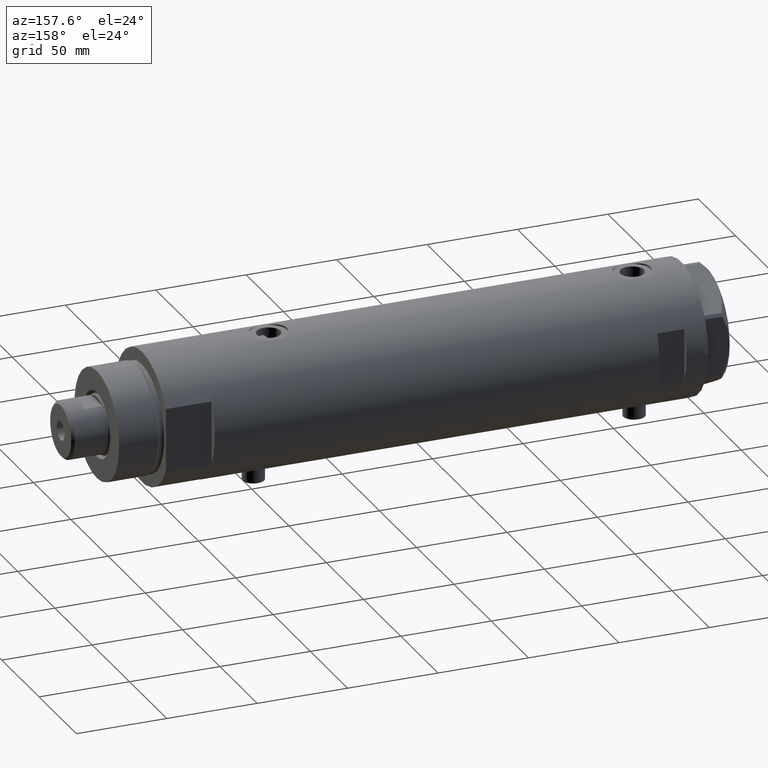
[diagram: clean part render]
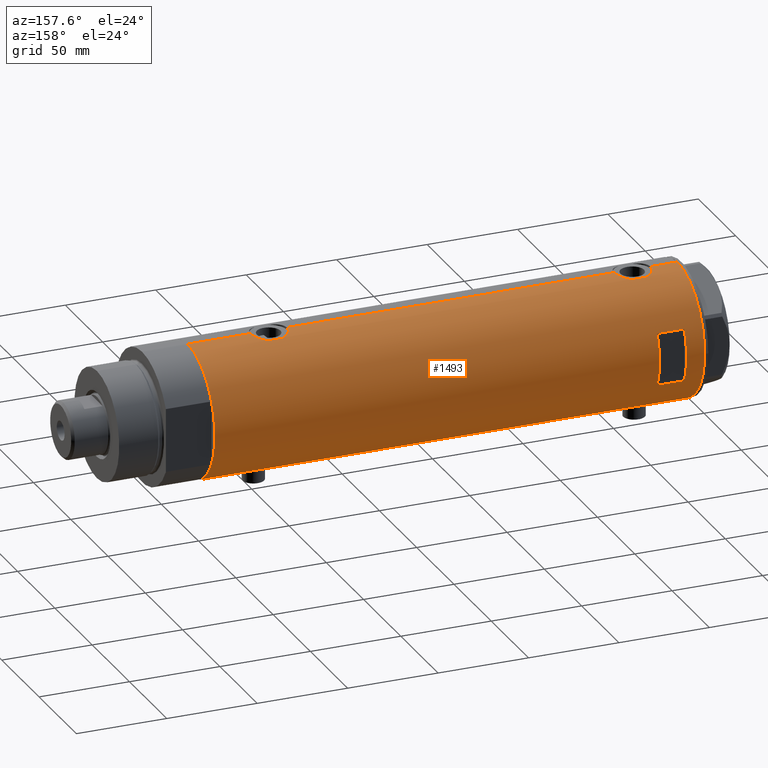
[diagram: same view with one face highlighted and labeled with its STEP entity id]
A machine part, auxiliary view. The second image highlights one B-rep face of the part: STEP entity #1493.
In plain terms, the highlighted cylindrical surface (partial cylindrical patch) has radius 36.5 mm, axis along (-1, -0, 0).
Its self-contained STEP definition (entity closure, byte-faithful):
#10 = CARTESIAN_POINT ( 'NONE',  ( 35.29999999999999716, 9.282241108697837362, 114.1202150475476316 ) ) ;
#15 = EDGE_CURVE ( 'NONE', #39, #277, #1297, .T. ) ;
#28 = VERTEX_POINT ( 'NONE', #2754 ) ;
#39 = VERTEX_POINT ( 'NONE', #970 ) ;
#54 = CARTESIAN_POINT ( 'NONE',  ( 36.29420020483473053, 3.877527130731370342, -99.82098974400290103 ) ) ;
#74 = CARTESIAN_POINT ( 'NONE',  ( -36.16083474549355259, 4.969527450313384165, 107.5879468087725144 ) ) ;
#101 = CARTESIAN_POINT ( 'NONE',  ( -36.50000000000000000, 1.603939656238031057E-15, -92.84999999999999432 ) ) ;
#119 = CARTESIAN_POINT ( 'NONE',  ( 35.52737867031126484, 8.373910777960906771, 104.9113964328293065 ) ) ;
#125 = ORIENTED_EDGE ( 'NONE', *, *, #160, .F. ) ;
#129 = CARTESIAN_POINT ( 'NONE',  ( -36.50000000000000000, 4.469960816887838430E-15, -135.4000000000000057 ) ) ;
#145 = VECTOR ( 'NONE', #1158, 1000.000000000000000 ) ;
#155 = LINE ( 'NONE', #1636, #4261 ) ;
#160 = EDGE_CURVE ( 'NONE', #960, #39, #3896, .T. ) ;
#164 = CARTESIAN_POINT ( 'NONE',  ( 36.45853166336080875, 1.985123042546145022, 100.5483732958226284 ) ) ;
#167 = CARTESIAN_POINT ( 'NONE',  ( 36.50000000000000000, 0.000000000000000000, 100.4000000000000057 ) ) ;
#188 = CARTESIAN_POINT ( 'NONE',  ( 35.69321149401851301, 7.633476302278308978, 116.8646307216643976 ) ) ;
#192 = VERTEX_POINT ( 'NONE', #2430 ) ;
#206 = CARTESIAN_POINT ( 'NONE',  ( 36.29420020483473053, 3.877527130731370342, 101.1790102559971132 ) ) ;
#212 = CARTESIAN_POINT ( 'NONE',  ( 36.48988646280794512, 0.9921857666168139023, -80.63671884865571826 ) ) ;
#234 = VECTOR ( 'NONE', #276, 1000.000000000000000 ) ;
#253 = DIRECTION ( 'NONE',  ( 0.000000000000000000, 0.000000000000000000, 1.000000000000000000 ) ) ;
#276 = DIRECTION ( 'NONE',  ( 0.000000000000000000, 0.000000000000000000, 1.000000000000000000 ) ) ;
#277 = VERTEX_POINT ( 'NONE', #3534 ) ;
#280 = VERTEX_POINT ( 'NONE', #10 ) ;
#286 = CARTESIAN_POINT ( 'NONE',  ( 36.40008489419980720, 2.709263960908029123, -80.97081895403604790 ) ) ;
#290 = EDGE_CURVE ( 'NONE', #3220, #3364, #2494, .T. ) ;
#314 = CARTESIAN_POINT ( 'NONE',  ( -35.96805604460922723, 6.209309709790234777, 110.5788724173182942 ) ) ;
#329 = CARTESIAN_POINT ( 'NONE',  ( -36.19597718496778072, 4.710322426433902976, -103.2285161076201518 ) ) ;
#336 = EDGE_CURVE ( 'NONE', #3364, #3942, #3596, .T. ) ;
#342 = CARTESIAN_POINT ( 'NONE',  ( -36.50000000000000000, 4.469960816887838430E-15, -135.4000000000000057 ) ) ;
#351 = CARTESIAN_POINT ( 'NONE',  ( 36.50000000000000000, 0.000000000000000000, -135.4000000000000057 ) ) ;
#353 = CARTESIAN_POINT ( 'NONE',  ( -36.40902375114221456, 2.582415566883930591, -104.7952169146968515 ) ) ;
#358 = EDGE_CURVE ( 'NONE', #280, #192, #1742, .T. ) ;
#379 = CARTESIAN_POINT ( 'NONE',  ( 35.40502660484481368, 8.876998817796907915, -95.23098724071233789 ) ) ;
#443 = CARTESIAN_POINT ( 'NONE',  ( -36.39522946636253664, 2.769519034821242176, 105.7933607626872288 ) ) ;
#444 = CARTESIAN_POINT ( 'NONE',  ( 35.34894515018992678, 9.096104616284845790, -94.78464083466538170 ) ) ;
#465 = CARTESIAN_POINT ( 'NONE',  ( 36.00287854058830561, 6.017835360302999703, 102.3981188281827457 ) ) ;
#486 = CARTESIAN_POINT ( 'NONE',  ( 36.50000000000000000, 4.344614706140975428E-19, 120.3999999999999915 ) ) ;
#533 = CARTESIAN_POINT ( 'NONE',  ( 36.34070350304396868, 3.414301401755543974, 100.9976378262409327 ) ) ;
#535 = VECTOR ( 'NONE', #2544, 1000.000000000000000 ) ;
#556 = ORIENTED_EDGE ( 'NONE', *, *, #1450, .T. ) ;
#577 = CARTESIAN_POINT ( 'NONE',  ( -36.50000000000000000, 1.603939656238031057E-15, -92.84999999999999432 ) ) ;
#596 = DIRECTION ( 'NONE',  ( 0.000000000000000000, 0.000000000000000000, 1.000000000000000000 ) ) ;
#599 = VECTOR ( 'NONE', #1744, 1000.000000000000000 ) ;
#613 = CARTESIAN_POINT ( 'NONE',  ( 35.52347503888660896, 8.410566959990466884, -85.10046032740658006 ) ) ;
#616 = CARTESIAN_POINT ( 'NONE',  ( -36.16126303108062956, 4.966520032693302333, 115.2164122774528181 ) ) ;
#618 = ORIENTED_EDGE ( 'NONE', *, *, #358, .F. ) ;
#635 = CARTESIAN_POINT ( 'NONE',  ( -36.35033317675380005, 3.306376218664579536, -104.4077071941605084 ) ) ;
#641 = CARTESIAN_POINT ( 'NONE',  ( 36.34264078466112124, 3.418717136061403927, -81.18950965959248833 ) ) ;
#642 = ORIENTED_EDGE ( 'NONE', *, *, #4329, .F. ) ;
#643 = CARTESIAN_POINT ( 'NONE',  ( -36.01679413914729366, 5.919813138266330377, 113.4149969104704070 ) ) ;
#659 = CARTESIAN_POINT ( 'NONE',  ( -35.98846897517730525, 6.089479646546502423, -97.67765108453481560 ) ) ;
#663 = CARTESIAN_POINT ( 'NONE',  ( -35.96793274302675059, 6.210029014836887740, 112.2169423767931846 ) ) ;
#679 = CARTESIAN_POINT ( 'NONE',  ( -35.99530513653993324, 6.049346314076207598, -100.7233258303583483 ) ) ;
#681 = DIRECTION ( 'NONE',  ( -0.000000000000000000, -0.000000000000000000, -1.000000000000000000 ) ) ;
#708 = CARTESIAN_POINT ( 'NONE',  ( -36.05296344941216091, 5.695624845616832133, 108.8184514346324931 ) ) ;
#725 = CARTESIAN_POINT ( 'NONE',  ( -36.01524716445113938, 5.931039972055515364, 109.3866926813534661 ) ) ;
#726 = CARTESIAN_POINT ( 'NONE',  ( 36.18948008481302026, 4.772042575486208804, -99.40177631243155076 ) ) ;
#757 = VERTEX_POINT ( 'NONE', #1603 ) ;
#770 = CARTESIAN_POINT ( 'NONE',  ( 0.000000000000000000, 0.000000000000000000, -135.4000000000000057 ) ) ;
#789 = CARTESIAN_POINT ( 'NONE',  ( 36.36225053217120973, 3.177096004138049601, -100.0851602447597770 ) ) ;
#831 = VERTEX_POINT ( 'NONE', #101 ) ;
#832 = CARTESIAN_POINT ( 'NONE',  ( 36.50000000000000711, 1.005842003469123336, 100.4000000000000199 ) ) ;
#850 = CARTESIAN_POINT ( 'NONE',  ( 36.45954139109321801, 1.735915671103595681, 120.2513678114701321 ) ) ;
#897 = CARTESIAN_POINT ( 'NONE',  ( 35.72794581931695745, 7.469526493268205058, 117.0533979672826490 ) ) ;
#911 = CARTESIAN_POINT ( 'NONE',  ( -36.50000000000000000, 4.469960493350315609E-15, 105.1499999999999915 ) ) ;
#920 = CARTESIAN_POINT ( 'NONE',  ( -36.11199073531170001, 5.309184630646994307, -95.79587159233167881 ) ) ;
#930 = LINE ( 'NONE', #4393, #2471 ) ;
#936 = ORIENTED_EDGE ( 'NONE', *, *, #1924, .F. ) ;
#945 = CARTESIAN_POINT ( 'NONE',  ( -36.09617453667821252, 5.415318599347967776, -95.97293357327089325 ) ) ;
#948 = ORIENTED_EDGE ( 'NONE', *, *, #4346, .T. ) ;
#955 = CARTESIAN_POINT ( 'NONE',  ( -36.49297130294515057, 0.8204796224394291793, 117.6093169221773422 ) ) ;
#957 = ORIENTED_EDGE ( 'NONE', *, *, #1012, .T. ) ;
#960 = VERTEX_POINT ( 'NONE', #2224 ) ;
#970 = CARTESIAN_POINT ( 'NONE',  ( -14.49137674618942917, 33.50000000000000000, 110.3999999999999773 ) ) ;
#986 = CARTESIAN_POINT ( 'NONE',  ( -36.06675137892952421, 5.607935153446978127, 114.1668182600875809 ) ) ;
#1008 = CARTESIAN_POINT ( 'NONE',  ( -36.19624103943463922, 4.708090268046848159, 115.5306122144614136 ) ) ;
#1012 = EDGE_CURVE ( 'NONE', #3322, #2120, #930, .T. ) ;
#1021 = CARTESIAN_POINT ( 'NONE',  ( -36.19624103943463922, 4.708090268046848159, -94.96938778553862903 ) ) ;
#1064 = ORIENTED_EDGE ( 'NONE', *, *, #290, .F. ) ;
#1099 = AXIS2_PLACEMENT_3D ( 'NONE', #770, #3784, #2850 ) ;
#1158 = DIRECTION ( 'NONE',  ( 0.000000000000000000, 0.000000000000000000, 1.000000000000000000 ) ) ;
#1166 = CARTESIAN_POINT ( 'NONE',  ( 14.49137674618942739, 33.50000000000000000, -135.4000000000000057 ) ) ;
#1177 = CARTESIAN_POINT ( 'NONE',  ( 35.79715675463678792, 7.130463293899340194, 117.4155558410599411 ) ) ;
#1207 = VERTEX_POINT ( 'NONE', #3719 ) ;
#1297 = LINE ( 'NONE', #4427, #3472 ) ;
#1301 = CARTESIAN_POINT ( 'NONE',  ( -36.49297130294515057, 0.8204796224394291793, -92.89068307782267198 ) ) ;
#1308 = DIRECTION ( 'NONE',  ( 0.000000000000000000, 0.000000000000000000, 1.000000000000000000 ) ) ;
#1310 = EDGE_CURVE ( 'NONE', #28, #2567, #155, .T. ) ;
#1329 = CARTESIAN_POINT ( 'NONE',  ( 36.12877841835537396, 5.208882251161925936, -82.04946835209707956 ) ) ;
#1363 = DIRECTION ( 'NONE',  ( 0.000000000000000000, 0.000000000000000000, 1.000000000000000000 ) ) ;
#1381 = CARTESIAN_POINT ( 'NONE',  ( 36.45954139109321801, 1.735915671103595681, -80.74863218852991054 ) ) ;
#1425 = CARTESIAN_POINT ( 'NONE',  ( -36.09643313249890184, 5.413601294342275771, 108.2699222660814797 ) ) ;
#1440 = CARTESIAN_POINT ( 'NONE',  ( -36.50000000000000000, 4.469960816887838430E-15, 135.4000000000000057 ) ) ;
#1450 = EDGE_CURVE ( 'NONE', #28, #2998, #2474, .T. ) ;
#1466 = CARTESIAN_POINT ( 'NONE',  ( -36.50000000000000000, 1.603939656238031057E-15, 117.6500000000000057 ) ) ;
#1470 = CARTESIAN_POINT ( 'NONE',  ( -36.39522946636253664, 2.769519034821242176, -104.7066392373127002 ) ) ;
#1493 = ADVANCED_FACE ( 'NONE', ( #2786, #2807 ), #2063, .T. ) ;
#1511 = CARTESIAN_POINT ( 'NONE',  ( -35.99530513653993324, 6.049346314076207598, 109.7766741696416375 ) ) ;
#1529 = CARTESIAN_POINT ( 'NONE',  ( 35.39804469700249001, 8.909380959553011792, 115.0505316448284248 ) ) ;
#1536 = VERTEX_POINT ( 'NONE', #3801 ) ;
#1546 = AXIS2_PLACEMENT_3D ( 'NONE', #3066, #1363, #2392 ) ;
#1549 = CARTESIAN_POINT ( 'NONE',  ( 36.50000000000000000, 0.000000000000000000, 100.4000000000000057 ) ) ;
#1574 = CARTESIAN_POINT ( 'NONE',  ( 36.44688397185920081, 1.983417953489138741, 120.2044995764825472 ) ) ;
#1594 = CARTESIAN_POINT ( 'NONE',  ( 35.83170458557578542, 6.955065627744199119, 117.5894167191246282 ) ) ;
#1603 = CARTESIAN_POINT ( 'NONE',  ( -36.50000000000000000, 4.469960493350315609E-15, -105.3499999999999943 ) ) ;
#1622 = CARTESIAN_POINT ( 'NONE',  ( 36.49999999999999289, 0.4961820988516178477, -80.59999999999998010 ) ) ;
#1636 = CARTESIAN_POINT ( 'NONE',  ( 36.50000000000000000, 0.000000000000000000, -135.4000000000000057 ) ) ;
#1652 = CARTESIAN_POINT ( 'NONE',  ( -36.50000000000000000, 0.4137727629436737664, 117.6500000000000057 ) ) ;
#1669 = CARTESIAN_POINT ( 'NONE',  ( -36.47290054070997201, 1.420408912806973678, -93.01013018339983773 ) ) ;
#1682 = CARTESIAN_POINT ( 'NONE',  ( -36.49999999999999289, 0.4083036190459308212, -105.3499999999999801 ) ) ;
#1696 = CARTESIAN_POINT ( 'NONE',  ( 35.79715675463678792, 7.130463293899340194, -83.58444415894003043 ) ) ;
#1697 = CARTESIAN_POINT ( 'NONE',  ( -35.98846897517730525, 6.089479646546502423, 112.8223489154652128 ) ) ;
#1733 = CARTESIAN_POINT ( 'NONE',  ( -36.26695135241003953, 4.128455078791301247, -103.8103759164473558 ) ) ;
#1742 = B_SPLINE_CURVE_WITH_KNOTS ( 'NONE', 3,
 ( #2257, #1529, #4257, #188, #897, #1177, #1594, #2912, #2283, #2953, #2213, #3642, #3269, #4286, #3576, #1574, #850, #1944, #4240, #486 ),
 .UNSPECIFIED., .F., .F.,
 ( 4, 2, 2, 2, 2, 2, 2, 2, 2, 4 ),
 ( 0.000000000000000000, 0.002977391289382919342, 0.003721739111728640179, 0.004466086934074362316, 0.005954782578765775367, 0.007443478223457188417, 0.008932173868148601467, 0.009676521690494316666, 0.01042086951284003013, 0.01190956515753145012 ),
 .UNSPECIFIED. ) ;
#1744 = DIRECTION ( 'NONE',  ( 0.000000000000000000, 0.000000000000000000, 1.000000000000000000 ) ) ;
#1796 = CARTESIAN_POINT ( 'NONE',  ( -36.50000000000000000, 4.469960493350315609E-15, 105.1499999999999915 ) ) ;
#1806 = EDGE_CURVE ( 'NONE', #831, #4368, #2621, .T. ) ;
#1843 = CARTESIAN_POINT ( 'NONE',  ( 35.29999999999999716, 9.282241108697837362, -94.32021504754762020 ) ) ;
#1847 = ORIENTED_EDGE ( 'NONE', *, *, #2223, .F. ) ;
#1874 = CARTESIAN_POINT ( 'NONE',  ( 35.40502660484481368, 8.876998817796907915, 105.7690127592876621 ) ) ;
#1881 = CARTESIAN_POINT ( 'NONE',  ( -36.36587679577595367, 3.131448301962863834, -104.5128246557361820 ) ) ;
#1893 = CARTESIAN_POINT ( 'NONE',  ( 35.29999999999999716, 9.282241108697837362, 106.6797849524523656 ) ) ;
#1924 = EDGE_CURVE ( 'NONE', #1536, #3220, #3742, .T. ) ;
#1937 = DIRECTION ( 'NONE',  ( -0.000000000000000000, -0.000000000000000000, -1.000000000000000000 ) ) ;
#1944 = CARTESIAN_POINT ( 'NONE',  ( 36.48988646280794512, 0.9921857666168139023, 120.3632811513442249 ) ) ;
#1972 = CARTESIAN_POINT ( 'NONE',  ( 36.41717583764486932, 2.469534783404761402, -80.90651988824329521 ) ) ;
#1974 = CARTESIAN_POINT ( 'NONE',  ( -36.47290054070997201, 1.420408912806973678, 117.4898698166001338 ) ) ;
#1982 = VERTEX_POINT ( 'NONE', #3627 ) ;
#1994 = CARTESIAN_POINT ( 'NONE',  ( -36.39638105034455151, 2.774378062517171006, -93.48456667300897038 ) ) ;
#2019 = CARTESIAN_POINT ( 'NONE',  ( 35.83170458557578542, 6.955065627744199119, -83.41058328087534335 ) ) ;
#2036 = B_SPLINE_CURVE_WITH_KNOTS ( 'NONE', 3,
 ( #577, #4078, #1301, #1669, #4055, #4005, #2382, #1994, #2741, #4100, #2664, #1021, #4027, #920, #945, #2309, #2361, #2401, #3737, #659, #3755, #2332, #3689, #3403, #679, #3362, #2038, #4406, #2059, #3427, #3027, #329, #1733, #3714, #635, #1881, #1470, #353, #2726, #3454, #4020, #1682, #3679 ),
 .UNSPECIFIED., .F., .F.,
 ( 4, 2, 2, 2, 2, 2, 2, 2, 1, 2, 2, 2, 2, 2, 2, 2, 2, 2, 2, 2, 2, 4 ),
 ( 1.558294008431693624E-18, 0.001223527801214140684, 0.001835291701821213954, 0.002447055602428288307, 0.003670583403642434413, 0.004894111204856580084, 0.006117639006070725756, 0.006729402906677815072, 0.007341166807284903520, 0.007952930707891993703, 0.008564694608499082151, 0.009788222409713260783, 0.01101175021092743941, 0.01223527801214161631, 0.01284704191274868568, 0.01345880581335575504, 0.01468233361456989725, 0.01590586141578403945, 0.01651762531639110881, 0.01712938921699818165, 0.01835291701821230650, 0.01957644481942643136 ),
 .UNSPECIFIED. ) ;
#2038 = CARTESIAN_POINT ( 'NONE',  ( -36.05296344941216091, 5.695624845616832133, -101.6815485653675495 ) ) ;
#2040 = EDGE_LOOP ( 'NONE', ( #556, #2584, #1847, #4304, #2429, #957, #3897, #4317, #618, #948, #4036, #1064, #936, #3946, #4454, #3407 ) ) ;
#2041 = CARTESIAN_POINT ( 'NONE',  ( 0.000000000000000000, 0.000000000000000000, 110.3999999999999773 ) ) ;
#2043 = CARTESIAN_POINT ( 'NONE',  ( -35.96094343308265451, 6.249843792257633091, 111.8108711034456917 ) ) ;
#2059 = CARTESIAN_POINT ( 'NONE',  ( -36.09643313249890184, 5.413601294342275771, -102.2300777339185061 ) ) ;
#2063 = CYLINDRICAL_SURFACE ( 'NONE', #1099, 36.50000000000000000 ) ;
#2064 = EDGE_CURVE ( 'NONE', #3322, #4368, #2135, .T. ) ;
#2065 = CARTESIAN_POINT ( 'NONE',  ( -36.50000000000000000, 1.603939656238031057E-15, 117.6500000000000057 ) ) ;
#2099 = CARTESIAN_POINT ( 'NONE',  ( -36.36587679577595367, 3.131448301962863834, 105.9871753442638038 ) ) ;
#2120 = VERTEX_POINT ( 'NONE', #1440 ) ;
#2124 = CARTESIAN_POINT ( 'NONE',  ( -36.49292802938585822, 0.8230716655928924652, 105.1909306124648538 ) ) ;
#2135 = B_SPLINE_CURVE_WITH_KNOTS ( 'NONE', 3,
 ( #2065, #1652, #955, #1974, #4088, #3434, #4391, #3034, #3698, #2699, #3345, #1008, #616, #4063, #3722, #986, #2387, #643, #4480, #1697, #663, #2043, #3412, #314, #1511, #725, #708, #3119, #1425, #4195, #74, #2453, #3802, #2851, #3868, #2099, #443, #4170, #2469, #3821, #2124, #2496, #1796 ),
 .UNSPECIFIED., .F., .F.,
 ( 4, 2, 2, 2, 2, 2, 2, 2, 1, 2, 2, 2, 2, 2, 2, 2, 2, 2, 2, 2, 2, 4 ),
 ( 1.558294008431693624E-18, 0.001223527801214140684, 0.001835291701821213954, 0.002447055602428288307, 0.003670583403642434413, 0.004894111204856580084, 0.006117639006070725756, 0.006729402906677815072, 0.007341166807284903520, 0.007952930707891993703, 0.008564694608499082151, 0.009788222409713260783, 0.01101175021092743941, 0.01223527801214161631, 0.01284704191274868568, 0.01345880581335575504, 0.01468233361456989725, 0.01590586141578403945, 0.01651762531639110881, 0.01712938921699818165, 0.01835291701821230650, 0.01957644481942643136 ),
 .UNSPECIFIED. ) ;
#2172 = CARTESIAN_POINT ( 'NONE',  ( 36.13018480315372472, 5.199168368309159405, -99.15646498208049309 ) ) ;
#2182 = AXIS2_PLACEMENT_3D ( 'NONE', #2041, #2693, #3409 ) ;
#2188 = CARTESIAN_POINT ( 'NONE',  ( 36.50000000000000000, 0.000000000000000000, -100.5999999999999801 ) ) ;
#2213 = CARTESIAN_POINT ( 'NONE',  ( 36.18937351723702278, 4.773052864917646687, 119.2013599311883922 ) ) ;
#2223 = EDGE_CURVE ( 'NONE', #831, #757, #2036, .T. ) ;
#2224 = CARTESIAN_POINT ( 'NONE',  ( 14.49137674618942917, 33.50000000000000000, 110.3999999999999773 ) ) ;
#2254 = ORIENTED_EDGE ( 'NONE', *, *, #3509, .F. ) ;
#2257 = CARTESIAN_POINT ( 'NONE',  ( 35.29999999999999716, 9.282241108697837362, 114.1202150475476316 ) ) ;
#2283 = CARTESIAN_POINT ( 'NONE',  ( 36.00145998247696610, 6.026272765084661032, 118.3955038821238759 ) ) ;
#2309 = CARTESIAN_POINT ( 'NONE',  ( -36.06675137892952421, 5.607935153446978127, -96.33318173991244748 ) ) ;
#2327 = CARTESIAN_POINT ( 'NONE',  ( 36.50000000000000000, 0.000000000000000000, 135.4000000000000057 ) ) ;
#2332 = CARTESIAN_POINT ( 'NONE',  ( -35.96094343308265451, 6.249843792257633091, -98.68912889655430831 ) ) ;
#2361 = CARTESIAN_POINT ( 'NONE',  ( -36.03936508729894683, 5.782103729777505308, -96.70129467396202472 ) ) ;
#2382 = CARTESIAN_POINT ( 'NONE',  ( -36.43371204571226230, 2.206934156026287841, -93.24902718329002482 ) ) ;
#2387 = CARTESIAN_POINT ( 'NONE',  ( -36.03936508729894683, 5.782103729777505308, 113.7987053260379611 ) ) ;
#2392 = DIRECTION ( 'NONE',  ( 1.000000000000000000, 0.000000000000000000, 0.000000000000000000 ) ) ;
#2401 = CARTESIAN_POINT ( 'NONE',  ( -36.01679413914729366, 5.919813138266330377, -97.08500308952963564 ) ) ;
#2429 = ORIENTED_EDGE ( 'NONE', *, *, #2064, .F. ) ;
#2430 = CARTESIAN_POINT ( 'NONE',  ( 36.50000000000000000, 4.344614706140975428E-19, 120.3999999999999915 ) ) ;
#2453 = CARTESIAN_POINT ( 'NONE',  ( -36.19597718496778072, 4.710322426433902976, 107.2714838923798482 ) ) ;
#2454 = CARTESIAN_POINT ( 'NONE',  ( 36.45853166336080875, 1.985123042546145022, -100.4516267041773432 ) ) ;
#2469 = CARTESIAN_POINT ( 'NONE',  ( -36.44628644024909647, 2.015372769639941275, 105.4697187198641615 ) ) ;
#2471 = VECTOR ( 'NONE', #1308, 1000.000000000000000 ) ;
#2474 = CIRCLE ( 'NONE', #1546, 36.50000000000000000 ) ;
#2494 = LINE ( 'NONE', #351, #3824 ) ;
#2496 = CARTESIAN_POINT ( 'NONE',  ( -36.49999999999999289, 0.4083036190459308212, 105.1499999999999773 ) ) ;
#2497 = CARTESIAN_POINT ( 'NONE',  ( 35.93456089024232369, 6.410413305453381838, -98.29085963204141763 ) ) ;
#2516 = CARTESIAN_POINT ( 'NONE',  ( 35.52737867031126484, 8.373910777960906771, -96.08860356717065088 ) ) ;
#2532 = CARTESIAN_POINT ( 'NONE',  ( 36.13018480315372472, 5.199168368309159405, 101.8435350179194643 ) ) ;
#2544 = DIRECTION ( 'NONE',  ( -0.000000000000000000, -0.000000000000000000, -1.000000000000000000 ) ) ;
#2557 = CARTESIAN_POINT ( 'NONE',  ( 36.18948008481302026, 4.772042575486208804, 101.5982236875684208 ) ) ;
#2567 = VERTEX_POINT ( 'NONE', #2188 ) ;
#2584 = ORIENTED_EDGE ( 'NONE', *, *, #2898, .T. ) ;
#2621 = LINE ( 'NONE', #3597, #145 ) ;
#2664 = CARTESIAN_POINT ( 'NONE',  ( -36.26643311080166399, 4.132772529026635944, -94.39380594730116059 ) ) ;
#2677 = LINE ( 'NONE', #4070, #3990 ) ;
#2693 = DIRECTION ( 'NONE',  ( -0.000000000000000000, -0.000000000000000000, 1.000000000000000000 ) ) ;
#2699 = CARTESIAN_POINT ( 'NONE',  ( -36.30200038006936580, 3.811959488093743520, 116.3697210483601054 ) ) ;
#2726 = CARTESIAN_POINT ( 'NONE',  ( -36.44628644024909647, 2.015372769639941275, -105.0302812801358527 ) ) ;
#2741 = CARTESIAN_POINT ( 'NONE',  ( -36.36688032967140316, 3.133094607697482825, -93.67663567362490085 ) ) ;
#2745 = CARTESIAN_POINT ( 'NONE',  ( 35.29999999999999716, 9.282241108697837362, -86.87978495245235422 ) ) ;
#2754 = CARTESIAN_POINT ( 'NONE',  ( 36.50000000000000000, 0.000000000000000000, -135.4000000000000057 ) ) ;
#2786 = FACE_BOUND ( 'NONE', #3194, .T. ) ;
#2788 = CARTESIAN_POINT ( 'NONE',  ( 36.50000000000000711, 1.005842003469123336, -100.5999999999999943 ) ) ;
#2807 = FACE_OUTER_BOUND ( 'NONE', #2040, .T. ) ;
#2827 = CARTESIAN_POINT ( 'NONE',  ( 36.50000000000000000, 0.000000000000000000, -100.5999999999999801 ) ) ;
#2850 = DIRECTION ( 'NONE',  ( 1.000000000000000000, 0.000000000000000000, 0.000000000000000000 ) ) ;
#2851 = CARTESIAN_POINT ( 'NONE',  ( -36.30181775639987052, 3.813582387016785091, 106.4316394242556072 ) ) ;
#2852 = CARTESIAN_POINT ( 'NONE',  ( 35.79766710091575987, 7.135341284989891619, -97.62350520560903533 ) ) ;
#2871 = CARTESIAN_POINT ( 'NONE',  ( 36.00287854058830561, 6.017835360302999703, -98.60188117181722589 ) ) ;
#2889 = CARTESIAN_POINT ( 'NONE',  ( 35.34894515018992678, 9.096104616284845790, 106.2153591653345615 ) ) ;
#2898 = EDGE_CURVE ( 'NONE', #2998, #757, #3444, .T. ) ;
#2912 = CARTESIAN_POINT ( 'NONE',  ( 35.93435287561198521, 6.411571491280768420, 118.0898864492284304 ) ) ;
#2953 = CARTESIAN_POINT ( 'NONE',  ( 36.12877841835537396, 5.208882251161925936, 118.9505316479029062 ) ) ;
#2984 = CARTESIAN_POINT ( 'NONE',  ( 36.50000000000000000, 4.344614706140975428E-19, -80.59999999999999432 ) ) ;
#2998 = VERTEX_POINT ( 'NONE', #129 ) ;
#3001 = CARTESIAN_POINT ( 'NONE',  ( 35.29999999999999716, 9.282241108697837362, -135.4000000000000057 ) ) ;
#3005 = DIRECTION ( 'NONE',  ( 1.000000000000000000, 1.776356839400250465E-15, 0.000000000000000000 ) ) ;
#3010 = CARTESIAN_POINT ( 'NONE',  ( 35.69321149401851301, 7.633476302278308978, -84.13536927833555978 ) ) ;
#3027 = CARTESIAN_POINT ( 'NONE',  ( -36.16083474549355259, 4.969527450313384165, -102.9120531912274998 ) ) ;
#3034 = CARTESIAN_POINT ( 'NONE',  ( -36.39638105034455151, 2.774378062517171006, 117.0154333269910296 ) ) ;
#3064 = CIRCLE ( 'NONE', #3488, 36.50000000000000000 ) ;
#3066 = CARTESIAN_POINT ( 'NONE',  ( 0.000000000000000000, 0.000000000000000000, -135.4000000000000057 ) ) ;
#3082 = CARTESIAN_POINT ( 'NONE',  ( 36.29611582693038940, 3.878758190381173421, -81.36955010900447860 ) ) ;
#3119 = CARTESIAN_POINT ( 'NONE',  ( -36.06690560274405044, 5.606949625760674571, 108.6311407604106876 ) ) ;
#3186 = B_SPLINE_CURVE_WITH_KNOTS ( 'NONE', 3,
 ( #2827, #2788, #2454, #789, #4196, #54, #3803, #726, #2172, #2871, #2497, #2852, #3849, #3475, #2516, #379, #444, #1843 ),
 .UNSPECIFIED., .F., .F.,
 ( 4, 2, 2, 2, 2, 2, 2, 2, 4 ),
 ( 1.734723475976807094E-18, 0.002973648994175672518, 0.003717061242719596394, 0.004460473491263520704, 0.005947297988351386670, 0.007434122485439251769, 0.008920946982527117736, 0.01040777147961498283, 0.01189459597670284793 ),
 .UNSPECIFIED. ) ;
#3194 = EDGE_LOOP ( 'NONE', ( #125, #642, #2254, #3513 ) ) ;
#3220 = VERTEX_POINT ( 'NONE', #3994 ) ;
#3233 = EDGE_CURVE ( 'NONE', #4048, #2120, #3064, .T. ) ;
#3269 = CARTESIAN_POINT ( 'NONE',  ( 36.34264078466112124, 3.418717136061403927, 119.8104903404075401 ) ) ;
#3283 = EDGE_CURVE ( 'NONE', #2567, #1207, #3186, .T. ) ;
#3294 = CARTESIAN_POINT ( 'NONE',  ( 35.29999999999999716, 9.282241108697837362, 106.6797849524523656 ) ) ;
#3313 = CARTESIAN_POINT ( 'NONE',  ( 35.59366931936805400, 8.089554397885871495, 104.5007268091218862 ) ) ;
#3318 = CARTESIAN_POINT ( 'NONE',  ( 35.93435287561198521, 6.411571491280768420, -82.91011355077159806 ) ) ;
#3322 = VERTEX_POINT ( 'NONE', #1466 ) ;
#3330 = LINE ( 'NONE', #3001, #3700 ) ;
#3344 = CIRCLE ( 'NONE', #4440, 36.50000000000000000 ) ;
#3345 = CARTESIAN_POINT ( 'NONE',  ( -36.26643311080166399, 4.132772529026635944, 116.1061940526988252 ) ) ;
#3362 = CARTESIAN_POINT ( 'NONE',  ( -36.01524716445113938, 5.931039972055515364, -101.1133073186465623 ) ) ;
#3364 = VERTEX_POINT ( 'NONE', #167 ) ;
#3403 = CARTESIAN_POINT ( 'NONE',  ( -35.96805604460922723, 6.209309709790234777, -99.92112758268173422 ) ) ;
#3407 = ORIENTED_EDGE ( 'NONE', *, *, #1310, .F. ) ;
#3409 = DIRECTION ( 'NONE',  ( -1.000000000000000000, -1.776356839400250465E-15, 0.000000000000000000 ) ) ;
#3411 = CARTESIAN_POINT ( 'NONE',  ( 35.39804469700249001, 8.909380959553011792, -85.94946835517158945 ) ) ;
#3412 = CARTESIAN_POINT ( 'NONE',  ( -35.96088929326157313, 6.250155299092687855, 110.9938950523675345 ) ) ;
#3427 = CARTESIAN_POINT ( 'NONE',  ( -36.11206433103227198, 5.308658295084048184, -102.4048464804097591 ) ) ;
#3434 = CARTESIAN_POINT ( 'NONE',  ( -36.44504802628534179, 2.011764947064737630, 117.3209364490851669 ) ) ;
#3444 = LINE ( 'NONE', #342, #599 ) ;
#3454 = CARTESIAN_POINT ( 'NONE',  ( -36.46598788992680085, 1.625721481788714895, -105.1487204671383608 ) ) ;
#3472 = VECTOR ( 'NONE', #253, 1000.000000000000000 ) ;
#3475 = CARTESIAN_POINT ( 'NONE',  ( 35.59366931936805400, 8.089554397885871495, -96.49927319087814226 ) ) ;
#3488 = AXIS2_PLACEMENT_3D ( 'NONE', #3889, #3869, #3536 ) ;
#3509 = EDGE_CURVE ( 'NONE', #277, #1982, #3344, .T. ) ;
#3513 = ORIENTED_EDGE ( 'NONE', *, *, #15, .F. ) ;
#3534 = CARTESIAN_POINT ( 'NONE',  ( -14.49137674618942739, 33.50000000000000000, 125.3999999999999773 ) ) ;
#3536 = DIRECTION ( 'NONE',  ( 1.000000000000000000, 0.000000000000000000, 0.000000000000000000 ) ) ;
#3576 = CARTESIAN_POINT ( 'NONE',  ( 36.41717583764486932, 2.469534783404761402, 120.0934801117567048 ) ) ;
#3596 = B_SPLINE_CURVE_WITH_KNOTS ( 'NONE', 3,
 ( #1549, #832, #164, #3934, #533, #206, #4332, #2557, #2532, #465, #3954, #3885, #4305, #3313, #119, #1874, #2889, #3294 ),
 .UNSPECIFIED., .F., .F.,
 ( 4, 2, 2, 2, 2, 2, 2, 2, 4 ),
 ( 1.734723475976807094E-18, 0.002973648994175672518, 0.003717061242719596394, 0.004460473491263520704, 0.005947297988351386670, 0.007434122485439251769, 0.008920946982527117736, 0.01040777147961498283, 0.01189459597670284793 ),
 .UNSPECIFIED. ) ;
#3597 = CARTESIAN_POINT ( 'NONE',  ( -36.50000000000000000, 4.469960816887838430E-15, -135.4000000000000057 ) ) ;
#3627 = CARTESIAN_POINT ( 'NONE',  ( 14.49137674618942739, 33.50000000000000000, 125.3999999999999773 ) ) ;
#3642 = CARTESIAN_POINT ( 'NONE',  ( 36.29611582693038940, 3.878758190381173421, 119.6304498909954930 ) ) ;
#3679 = CARTESIAN_POINT ( 'NONE',  ( -36.50000000000000000, 4.469960493350315609E-15, -105.3499999999999943 ) ) ;
#3689 = CARTESIAN_POINT ( 'NONE',  ( -35.96088929326157313, 6.250155299092687855, -99.50610494763242286 ) ) ;
#3698 = CARTESIAN_POINT ( 'NONE',  ( -36.36688032967140316, 3.133094607697482825, 116.8233643263751134 ) ) ;
#3700 = VECTOR ( 'NONE', #4021, 1000.000000000000000 ) ;
#3714 = CARTESIAN_POINT ( 'NONE',  ( -36.30181775639987052, 3.813582387016785091, -104.0683605757443360 ) ) ;
#3719 = CARTESIAN_POINT ( 'NONE',  ( 35.29999999999999716, 9.282241108697837362, -94.32021504754762020 ) ) ;
#3722 = CARTESIAN_POINT ( 'NONE',  ( -36.09617453667821252, 5.415318599347967776, 114.5270664267291068 ) ) ;
#3731 = CARTESIAN_POINT ( 'NONE',  ( 36.50000000000000000, 0.000000000000000000, -135.4000000000000057 ) ) ;
#3737 = CARTESIAN_POINT ( 'NONE',  ( -35.99700617875953412, 6.038972911021586398, -97.47666814201680552 ) ) ;
#3741 = CARTESIAN_POINT ( 'NONE',  ( 36.18937351723702278, 4.773052864917646687, -81.79864006881155092 ) ) ;
#3742 = B_SPLINE_CURVE_WITH_KNOTS ( 'NONE', 3,
 ( #2745, #3411, #613, #3010, #4105, #1696, #2019, #3318, #4008, #1329, #3741, #3082, #641, #286, #1972, #4087, #1381, #212, #1622, #2984 ),
 .UNSPECIFIED., .F., .F.,
 ( 4, 2, 2, 2, 2, 2, 2, 2, 2, 4 ),
 ( 0.000000000000000000, 0.002977391289382919342, 0.003721739111728640179, 0.004466086934074362316, 0.005954782578765775367, 0.007443478223457188417, 0.008932173868148601467, 0.009676521690494316666, 0.01042086951284003013, 0.01190956515753145012 ),
 .UNSPECIFIED. ) ;
#3755 = CARTESIAN_POINT ( 'NONE',  ( -35.96793274302675059, 6.210029014836887740, -98.28305762320681538 ) ) ;
#3784 = DIRECTION ( 'NONE',  ( 0.000000000000000000, 0.000000000000000000, 1.000000000000000000 ) ) ;
#3801 = CARTESIAN_POINT ( 'NONE',  ( 35.29999999999999716, 9.282241108697837362, -86.87978495245235422 ) ) ;
#3802 = CARTESIAN_POINT ( 'NONE',  ( -36.26695135241003953, 4.128455078791301247, 106.6896240835525163 ) ) ;
#3803 = CARTESIAN_POINT ( 'NONE',  ( 36.26917563968160607, 4.104523505324181087, -99.72215988367473471 ) ) ;
#3821 = CARTESIAN_POINT ( 'NONE',  ( -36.46598788992680085, 1.625721481788714895, 105.3512795328616249 ) ) ;
#3824 = VECTOR ( 'NONE', #3847, 1000.000000000000000 ) ;
#3847 = DIRECTION ( 'NONE',  ( 0.000000000000000000, 0.000000000000000000, 1.000000000000000000 ) ) ;
#3849 = CARTESIAN_POINT ( 'NONE',  ( 35.72860827204725354, 7.471059959301281417, -97.26525150474412840 ) ) ;
#3868 = CARTESIAN_POINT ( 'NONE',  ( -36.35033317675380005, 3.306376218664579536, 106.0922928058394632 ) ) ;
#3869 = DIRECTION ( 'NONE',  ( 0.000000000000000000, 0.000000000000000000, 1.000000000000000000 ) ) ;
#3885 = CARTESIAN_POINT ( 'NONE',  ( 35.79766710091575987, 7.135341284989891619, 103.3764947943909647 ) ) ;
#3889 = CARTESIAN_POINT ( 'NONE',  ( 0.000000000000000000, 0.000000000000000000, 135.4000000000000057 ) ) ;
#3896 = CIRCLE ( 'NONE', #2182, 36.50000000000000000 ) ;
#3897 = ORIENTED_EDGE ( 'NONE', *, *, #3233, .F. ) ;
#3934 = CARTESIAN_POINT ( 'NONE',  ( 36.36225053217120973, 3.177096004138049601, 100.9148397552402088 ) ) ;
#3942 = VERTEX_POINT ( 'NONE', #1893 ) ;
#3946 = ORIENTED_EDGE ( 'NONE', *, *, #4040, .T. ) ;
#3954 = CARTESIAN_POINT ( 'NONE',  ( 35.93456089024232369, 6.410413305453381838, 102.7091403679585397 ) ) ;
#3990 = VECTOR ( 'NONE', #1937, 1000.000000000000000 ) ;
#3994 = CARTESIAN_POINT ( 'NONE',  ( 36.50000000000000000, 4.344614706140975428E-19, -80.59999999999999432 ) ) ;
#4001 = EDGE_CURVE ( 'NONE', #192, #4048, #4449, .T. ) ;
#4005 = CARTESIAN_POINT ( 'NONE',  ( -36.44504802628534179, 2.011764947064737630, -93.17906355091479043 ) ) ;
#4008 = CARTESIAN_POINT ( 'NONE',  ( 36.00145998247696610, 6.026272765084661032, -82.60449611787612412 ) ) ;
#4020 = CARTESIAN_POINT ( 'NONE',  ( -36.49292802938585822, 0.8230716655928924652, -105.3090693875351178 ) ) ;
#4021 = DIRECTION ( 'NONE',  ( -0.000000000000000000, -0.000000000000000000, -1.000000000000000000 ) ) ;
#4027 = CARTESIAN_POINT ( 'NONE',  ( -36.16126303108062956, 4.966520032693302333, -95.28358772254715348 ) ) ;
#4036 = ORIENTED_EDGE ( 'NONE', *, *, #336, .F. ) ;
#4040 = EDGE_CURVE ( 'NONE', #1536, #1207, #3330, .T. ) ;
#4048 = VERTEX_POINT ( 'NONE', #2327 ) ;
#4055 = CARTESIAN_POINT ( 'NONE',  ( -36.46462099658055678, 1.618684470865507041, -93.05975602975154004 ) ) ;
#4063 = CARTESIAN_POINT ( 'NONE',  ( -36.11199073531170001, 5.309184630646994307, 114.7041284076683496 ) ) ;
#4070 = CARTESIAN_POINT ( 'NONE',  ( 35.29999999999999716, 9.282241108697837362, -135.4000000000000057 ) ) ;
#4078 = CARTESIAN_POINT ( 'NONE',  ( -36.50000000000000000, 0.4137727629436737664, -92.85000000000000853 ) ) ;
#4087 = CARTESIAN_POINT ( 'NONE',  ( 36.44688397185920081, 1.983417953489138741, -80.79550042351748118 ) ) ;
#4088 = CARTESIAN_POINT ( 'NONE',  ( -36.46462099658055678, 1.618684470865507041, 117.4402439702484742 ) ) ;
#4100 = CARTESIAN_POINT ( 'NONE',  ( -36.30200038006936580, 3.811959488093743520, -94.13027895163997982 ) ) ;
#4105 = CARTESIAN_POINT ( 'NONE',  ( 35.72794581931695745, 7.469526493268205058, -83.94660203271737942 ) ) ;
#4170 = CARTESIAN_POINT ( 'NONE',  ( -36.40902375114221456, 2.582415566883930591, 105.7047830853031058 ) ) ;
#4195 = CARTESIAN_POINT ( 'NONE',  ( -36.11206433103227198, 5.308658295084048184, 108.0951535195902409 ) ) ;
#4196 = CARTESIAN_POINT ( 'NONE',  ( 36.34070350304396868, 3.414301401755543974, -100.0023621737590531 ) ) ;
#4240 = CARTESIAN_POINT ( 'NONE',  ( 36.49999999999999289, 0.4961820988516178477, 120.3999999999999631 ) ) ;
#4250 = LINE ( 'NONE', #1166, #535 ) ;
#4257 = CARTESIAN_POINT ( 'NONE',  ( 35.52347503888660896, 8.410566959990466884, 115.8995396725934057 ) ) ;
#4260 = CARTESIAN_POINT ( 'NONE',  ( 0.000000000000000000, 0.000000000000000000, 125.3999999999999773 ) ) ;
#4261 = VECTOR ( 'NONE', #596, 1000.000000000000000 ) ;
#4286 = CARTESIAN_POINT ( 'NONE',  ( 36.40008489419980720, 2.709263960908029123, 120.0291810459638668 ) ) ;
#4304 = ORIENTED_EDGE ( 'NONE', *, *, #1806, .T. ) ;
#4305 = CARTESIAN_POINT ( 'NONE',  ( 35.72860827204725354, 7.471059959301281417, 103.7347484952559284 ) ) ;
#4317 = ORIENTED_EDGE ( 'NONE', *, *, #4001, .F. ) ;
#4329 = EDGE_CURVE ( 'NONE', #1982, #960, #4250, .T. ) ;
#4332 = CARTESIAN_POINT ( 'NONE',  ( 36.26917563968160607, 4.104523505324181087, 101.2778401163252653 ) ) ;
#4346 = EDGE_CURVE ( 'NONE', #280, #3942, #2677, .T. ) ;
#4368 = VERTEX_POINT ( 'NONE', #911 ) ;
#4391 = CARTESIAN_POINT ( 'NONE',  ( -36.43371204571226230, 2.206934156026287841, 117.2509728167099468 ) ) ;
#4393 = CARTESIAN_POINT ( 'NONE',  ( -36.50000000000000000, 4.469960816887838430E-15, -135.4000000000000057 ) ) ;
#4406 = CARTESIAN_POINT ( 'NONE',  ( -36.06690560274405044, 5.606949625760674571, -101.8688592395893124 ) ) ;
#4427 = CARTESIAN_POINT ( 'NONE',  ( -14.49137674618942739, 33.50000000000000000, -135.4000000000000057 ) ) ;
#4440 = AXIS2_PLACEMENT_3D ( 'NONE', #4260, #681, #3005 ) ;
#4449 = LINE ( 'NONE', #3731, #234 ) ;
#4454 = ORIENTED_EDGE ( 'NONE', *, *, #3283, .F. ) ;
#4480 = CARTESIAN_POINT ( 'NONE',  ( -35.99700617875953412, 6.038972911021586398, 113.0233318579832229 ) ) ;